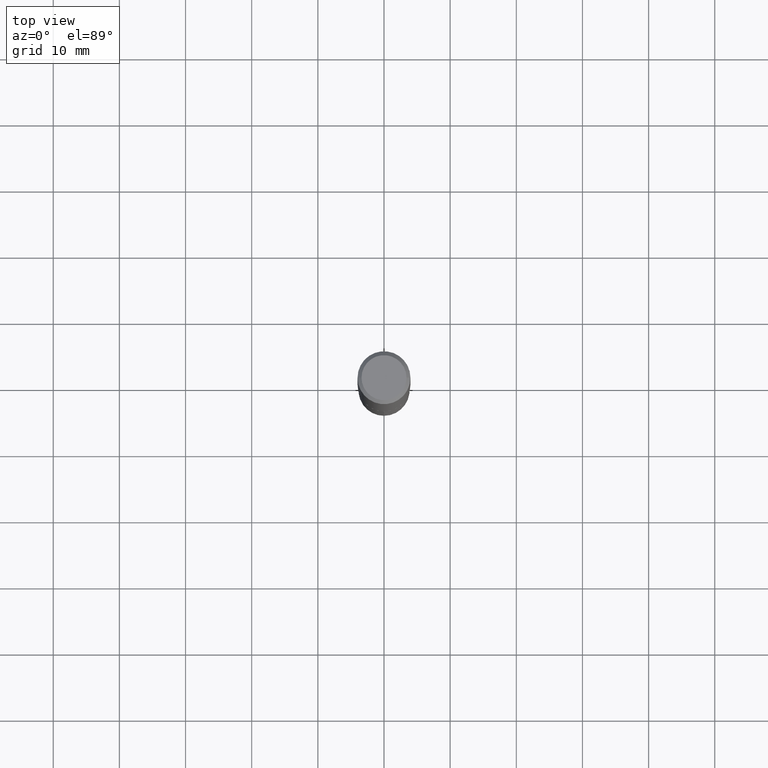
[diagram: clean part render]
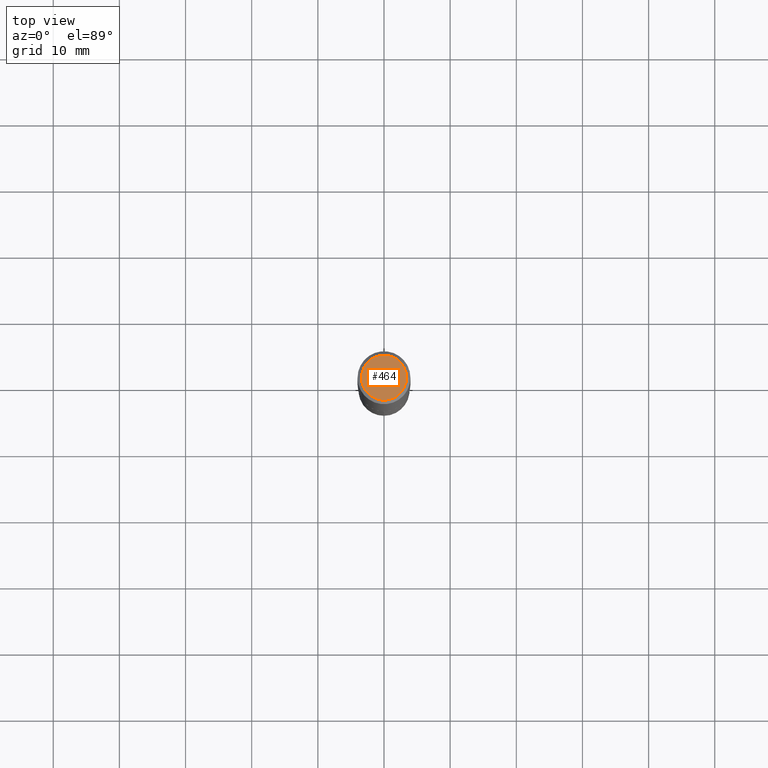
[diagram: same view with one face highlighted and labeled with its STEP entity id]
A machine part, top view. The second image highlights one B-rep face of the part: STEP entity #464.
In plain terms, the highlighted planar face has unit normal (0, -0, -1).
Its self-contained STEP definition (entity closure, byte-faithful):
#9 = PLANE ( 'NONE',  #209 ) ;
#33 = DIRECTION ( 'NONE',  ( -2.445468806185136597E-29, 3.491481338843145583E-15, 1.000000000000000000 ) ) ;
#77 = CARTESIAN_POINT ( 'NONE',  ( -5.014852121625163022E-47, 7.159879756154476955E-33, 2.050671065172241055E-18 ) ) ;
#89 = EDGE_CURVE ( 'NONE', #327, #133, #184, .T. ) ;
#129 = CARTESIAN_POINT ( 'NONE',  ( -0.1338749999999999940, 9.760872517903331886E-16, 4.101342130337800673E-18 ) ) ;
#130 = ORIENTED_EDGE ( 'NONE', *, *, #89, .T. ) ;
#133 = VERTEX_POINT ( 'NONE', #129 ) ;
#165 = CARTESIAN_POINT ( 'NONE',  ( -1.002970424325032604E-46, 1.431975951230895391E-32, 4.101342130344482109E-18 ) ) ;
#172 = DIRECTION ( 'NONE',  ( 1.000000000000000000, -6.982962677686266711E-15, 4.876170806578254279E-29 ) ) ;
#174 = CARTESIAN_POINT ( 'NONE',  ( -1.002970424325032604E-46, 1.431975951230895391E-32, 4.101342130344482109E-18 ) ) ;
#184 = CIRCLE ( 'NONE', #454, 0.1338749999999999940 ) ;
#209 = AXIS2_PLACEMENT_3D ( 'NONE', #77, #291, #446 ) ;
#285 = CARTESIAN_POINT ( 'NONE',  ( 0.1338749999999999940, -1.040731925365424925E-15, 4.101342130351390035E-18 ) ) ;
#290 = CIRCLE ( 'NONE', #439, 0.1338749999999999940 ) ;
#291 = DIRECTION ( 'NONE',  ( 2.438088387897960049E-29, -3.491481338843145188E-15, -1.000000000000000000 ) ) ;
#297 = DIRECTION ( 'NONE',  ( -2.445468806185136597E-29, 3.491481338843145583E-15, 1.000000000000000000 ) ) ;
#303 = EDGE_CURVE ( 'NONE', #133, #327, #290, .T. ) ;
#309 = DIRECTION ( 'NONE',  ( 1.000000000000000000, -6.982962677686266711E-15, 4.876170806578254279E-29 ) ) ;
#327 = VERTEX_POINT ( 'NONE', #285 ) ;
#358 = ORIENTED_EDGE ( 'NONE', *, *, #303, .T. ) ;
#369 = FACE_OUTER_BOUND ( 'NONE', #425, .T. ) ;
#425 = EDGE_LOOP ( 'NONE', ( #358, #130 ) ) ;
#439 = AXIS2_PLACEMENT_3D ( 'NONE', #174, #33, #172 ) ;
#446 = DIRECTION ( 'NONE',  ( -1.000000000000000000, 6.982962677686265922E-15, -4.876176775795935793E-29 ) ) ;
#454 = AXIS2_PLACEMENT_3D ( 'NONE', #165, #297, #309 ) ;
#464 = ADVANCED_FACE ( 'NONE', ( #369 ), #9, .F. ) ;